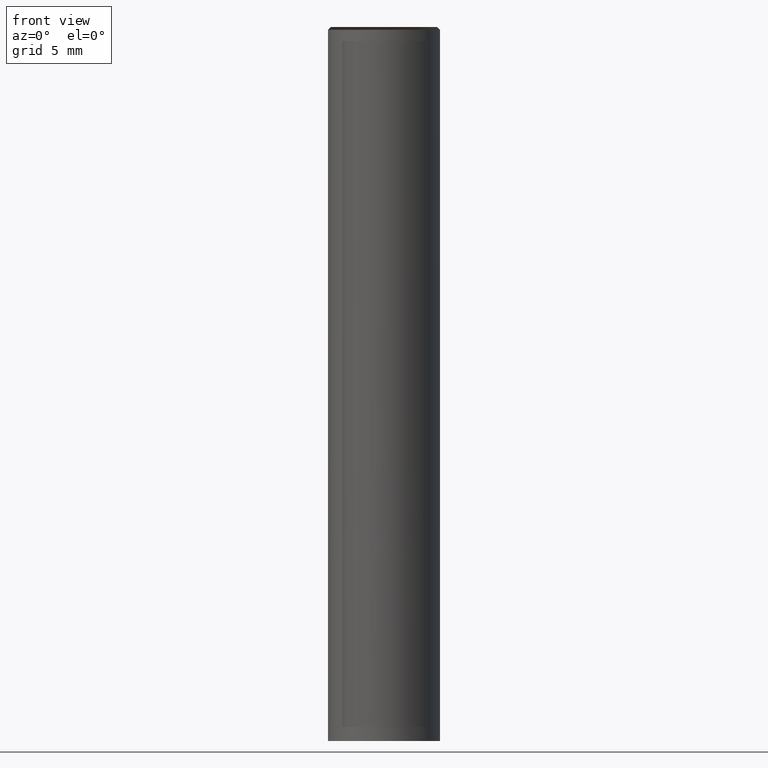
[diagram: clean part render]
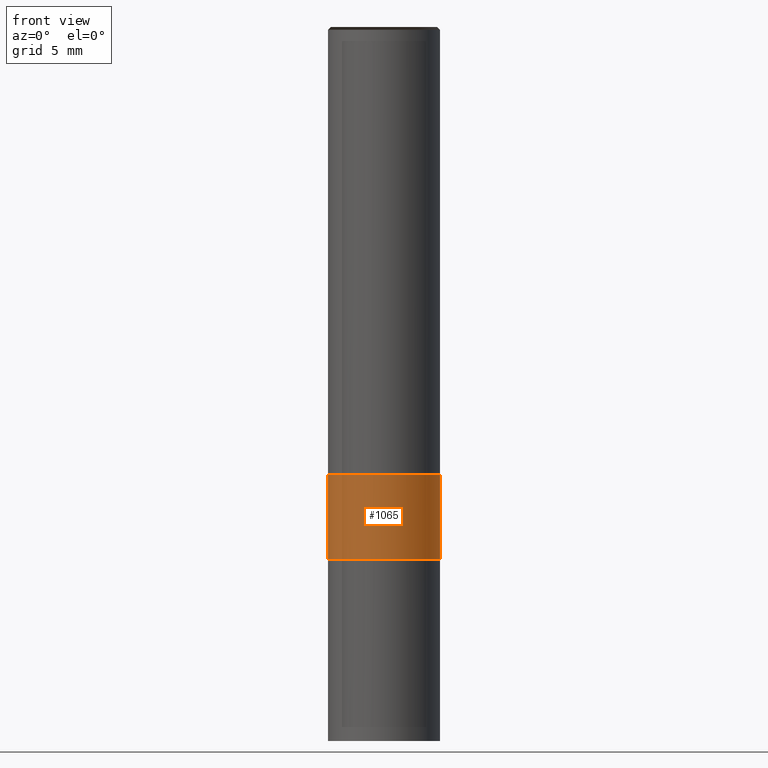
[diagram: same view with one face highlighted and labeled with its STEP entity id]
A machine part, front view. The second image highlights one B-rep face of the part: STEP entity #1065.
In plain terms, the highlighted face is a freeform B-spline surface patch.
Its self-contained STEP definition (entity closure, byte-faithful):
#787=CARTESIAN_POINT('',(4.0,0.0,-6.0));
#791=CARTESIAN_POINT('',(-4.0,0.0,-6.0));
#795=CARTESIAN_POINT('',(-4.0,-4.0,-6.0));
#796=CARTESIAN_POINT('',(0.0,-4.0,-6.0));
#797=CARTESIAN_POINT('',(4.0,-4.0,-6.0));
#798=CARTESIAN_POINT('',(4.0,0.0,0.0));
#802=CARTESIAN_POINT('',(-4.0,0.0,0.0));
#814=CARTESIAN_POINT('',(-4.0,-4.0,0.0));
#815=CARTESIAN_POINT('',(0.0,-4.0,0.0));
#816=CARTESIAN_POINT('',(4.0,-4.0,0.0));
#1046=(
BOUNDED_SURFACE()
B_SPLINE_SURFACE(1,2,(
(#791,#795,#796,#797,#787),
(#802,#814,#815,#816,#798)
), .UNSPECIFIED.,.F.,.F.,.F.)
B_SPLINE_SURFACE_WITH_KNOTS((2,2),(3,2,3),(
0.0,1.0),(
0.0,0.5,1.0), .UNSPECIFIED.)
GEOMETRIC_REPRESENTATION_ITEM()
RATIONAL_B_SPLINE_SURFACE(((1.0,0.707106781187,1.0,0.707106781187,1.0),
(1.0,0.707106781187,1.0,0.707106781187,1.0)
))
REPRESENTATION_ITEM('')
SURFACE()
);
#1047=(
BOUNDED_CURVE()
B_SPLINE_CURVE(2,(#787,#797,#796,#795,#791),.UNSPECIFIED.,.F.,.F.)
B_SPLINE_CURVE_WITH_KNOTS((3,2,3),
(0.0,0.5,1.0),.UNSPECIFIED.)
CURVE()
GEOMETRIC_REPRESENTATION_ITEM()
RATIONAL_B_SPLINE_CURVE((1.0,0.707106781187,1.0,0.707106781187,1.0))
REPRESENTATION_ITEM('')
);
#1048=(
BOUNDED_CURVE()
B_SPLINE_CURVE(1,(#791,#802),.UNSPECIFIED.,.F.,.F.)
B_SPLINE_CURVE_WITH_KNOTS((2,2),
(0.0,1.0),.UNSPECIFIED.)
CURVE()
GEOMETRIC_REPRESENTATION_ITEM()
RATIONAL_B_SPLINE_CURVE((1.0,1.0))
REPRESENTATION_ITEM('')
);
#1049=(
BOUNDED_CURVE()
B_SPLINE_CURVE(2,(#802,#814,#815,#816,#798),.UNSPECIFIED.,.F.,.F.)
B_SPLINE_CURVE_WITH_KNOTS((3,2,3),
(0.0,0.5,1.0),.UNSPECIFIED.)
CURVE()
GEOMETRIC_REPRESENTATION_ITEM()
RATIONAL_B_SPLINE_CURVE((1.0,0.707106781187,1.0,0.707106781187,1.0))
REPRESENTATION_ITEM('')
);
#1050=(
BOUNDED_CURVE()
B_SPLINE_CURVE(1,(#798,#787),.UNSPECIFIED.,.F.,.F.)
B_SPLINE_CURVE_WITH_KNOTS((2,2),
(0.0,1.0),.UNSPECIFIED.)
CURVE()
GEOMETRIC_REPRESENTATION_ITEM()
RATIONAL_B_SPLINE_CURVE((1.0,1.0))
REPRESENTATION_ITEM('')
);
#1051=VERTEX_POINT('',#787);
#1052=VERTEX_POINT('',#791);
#1053=VERTEX_POINT('',#798);
#1054=VERTEX_POINT('',#802);
#1055=EDGE_CURVE('',#1051,#1052,#1047,.T.);
#1056=EDGE_CURVE('',#1052,#1054,#1048,.T.);
#1057=EDGE_CURVE('',#1054,#1053,#1049,.T.);
#1058=EDGE_CURVE('',#1053,#1051,#1050,.T.);
#1059=ORIENTED_EDGE('',*,*,#1055,.T.);
#1060=ORIENTED_EDGE('',*,*,#1056,.T.);
#1061=ORIENTED_EDGE('',*,*,#1057,.T.);
#1062=ORIENTED_EDGE('',*,*,#1058,.T.);
#1063=EDGE_LOOP('',(#1059,#1060,#1061,#1062));
#1064=FACE_OUTER_BOUND('',#1063,.T.);
#1065=ADVANCED_FACE('',(#1064),#1046,.T.);